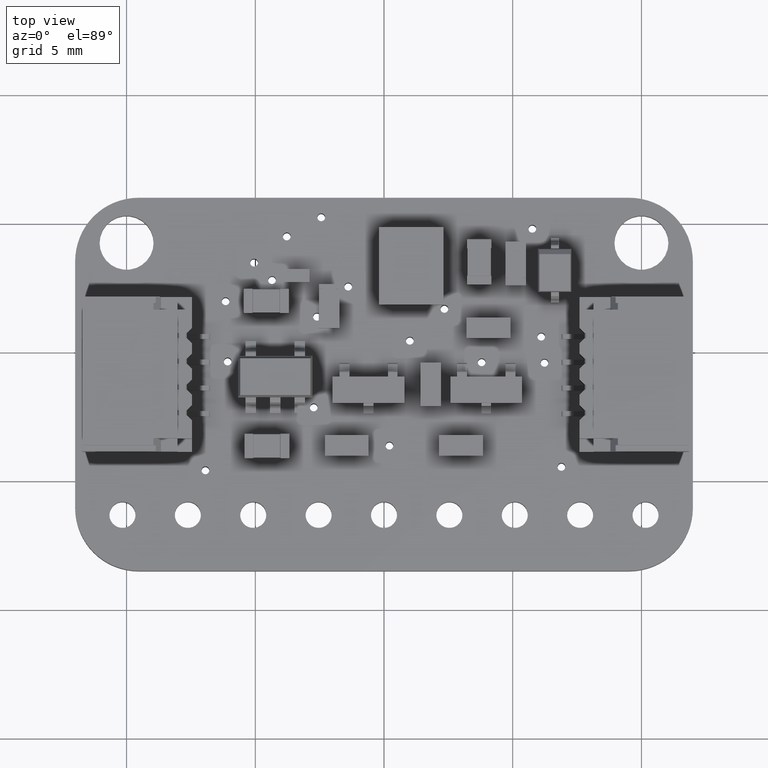
[diagram: clean part render]
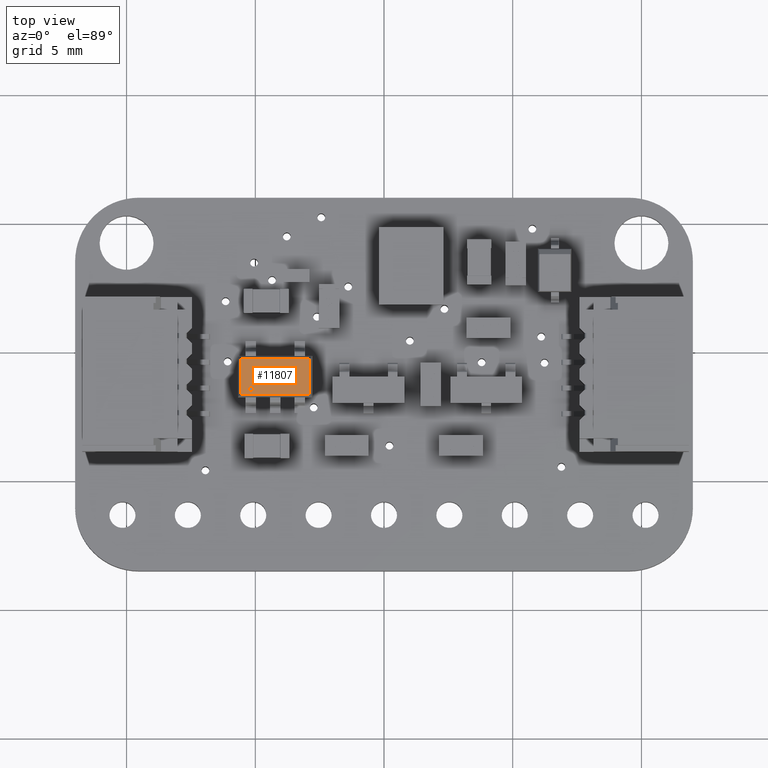
[diagram: same view with one face highlighted and labeled with its STEP entity id]
A machine part, top view. The second image highlights one B-rep face of the part: STEP entity #11807.
In plain terms, the highlighted planar face has unit normal (0, 0, 1).
Its self-contained STEP definition (entity closure, byte-faithful):
#11713 = VERTEX_POINT('',#11714);
#11714 = CARTESIAN_POINT('',(-0.684402810399,-1.334402810399,1.45));
#11721 = EDGE_CURVE('',#11713,#11722,#11724,.T.);
#11722 = VERTEX_POINT('',#11723);
#11723 = CARTESIAN_POINT('',(-0.684402810399,1.334402810399,1.45));
#11724 = LINE('',#11725,#11726);
#11725 = CARTESIAN_POINT('',(-0.684402810399,-1.37,1.45));
#11726 = VECTOR('',#11727,1.);
#11727 = DIRECTION('',(0.,1.,0.));
#11788 = VERTEX_POINT('',#11789);
#11789 = CARTESIAN_POINT('',(0.684402810399,-1.334402810399,1.45));
#11796 = EDGE_CURVE('',#11713,#11788,#11797,.T.);
#11797 = LINE('',#11798,#11799);
#11798 = CARTESIAN_POINT('',(-0.72,-1.334402810399,1.45));
#11799 = VECTOR('',#11800,1.);
#11800 = DIRECTION('',(1.,0.,0.));
#11807 = ADVANCED_FACE('',(#11808,#11826),#11837,.T.);
#11808 = FACE_BOUND('',#11809,.T.);
#11809 = EDGE_LOOP('',(#11810,#11811,#11812,#11820));
#11810 = ORIENTED_EDGE('',*,*,#11721,.F.);
#11811 = ORIENTED_EDGE('',*,*,#11796,.T.);
#11812 = ORIENTED_EDGE('',*,*,#11813,.T.);
#11813 = EDGE_CURVE('',#11788,#11814,#11816,.T.);
#11814 = VERTEX_POINT('',#11815);
#11815 = CARTESIAN_POINT('',(0.684402810399,1.334402810399,1.45));
#11816 = LINE('',#11817,#11818);
#11817 = CARTESIAN_POINT('',(0.684402810399,-1.37,1.45));
#11818 = VECTOR('',#11819,1.);
#11819 = DIRECTION('',(0.,1.,0.));
#11820 = ORIENTED_EDGE('',*,*,#11821,.F.);
#11821 = EDGE_CURVE('',#11722,#11814,#11822,.T.);
#11822 = LINE('',#11823,#11824);
#11823 = CARTESIAN_POINT('',(-0.72,1.334402810399,1.45));
#11824 = VECTOR('',#11825,1.);
#11825 = DIRECTION('',(1.,0.,0.));
#11826 = FACE_BOUND('',#11827,.T.);
#11827 = EDGE_LOOP('',(#11828));
#11828 = ORIENTED_EDGE('',*,*,#11829,.F.);
#11829 = EDGE_CURVE('',#11830,#11830,#11832,.T.);
#11830 = VERTEX_POINT('',#11831);
#11831 = CARTESIAN_POINT('',(-0.38,0.95,1.45));
#11832 = CIRCLE('',#11833,0.1);
#11833 = AXIS2_PLACEMENT_3D('',#11834,#11835,#11836);
#11834 = CARTESIAN_POINT('',(-0.48,0.95,1.45));
#11835 = DIRECTION('',(0.,0.,1.));
#11836 = DIRECTION('',(1.,0.,-0.));
#11837 = PLANE('',#11838);
#11838 = AXIS2_PLACEMENT_3D('',#11839,#11840,#11841);
#11839 = CARTESIAN_POINT('',(-0.8,-1.45,1.45));
#11840 = DIRECTION('',(0.,0.,1.));
#11841 = DIRECTION('',(1.,0.,-0.));